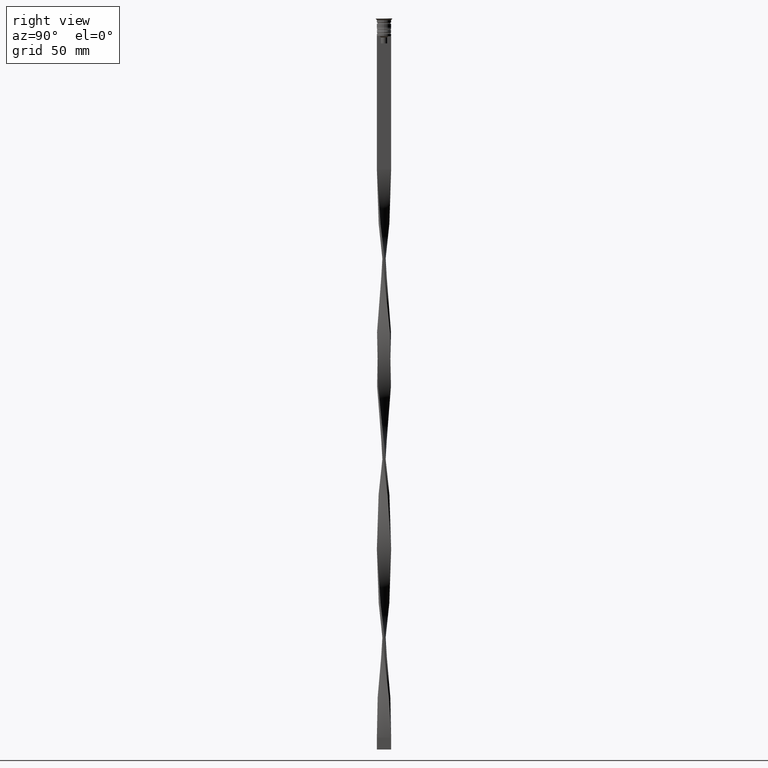
[diagram: clean part render]
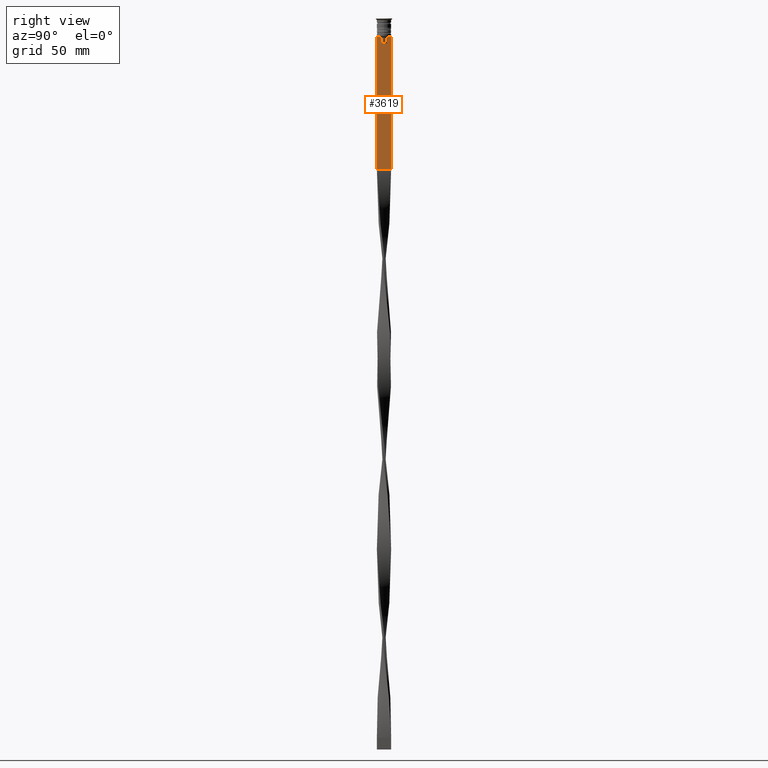
[diagram: same view with one face highlighted and labeled with its STEP entity id]
A machine part, right view. The second image highlights one B-rep face of the part: STEP entity #3619.
In plain terms, the highlighted planar face has unit normal (-1, 0, 0).
Its self-contained STEP definition (entity closure, byte-faithful):
#5 = LINE ( 'NONE', #1583, #2114 ) ;
#18 = CARTESIAN_POINT ( 'NONE',  ( 0.4999999999999998890, 1.307669683062199439, -10.49999999999999822 ) ) ;
#41 = CARTESIAN_POINT ( 'NONE',  ( 0.4999999999999998890, 2.856571371417139904, -7.500000000000000000 ) ) ;
#104 = EDGE_CURVE ( 'NONE', #790, #3881, #2633, .T. ) ;
#122 = ORIENTED_EDGE ( 'NONE', *, *, #961, .T. ) ;
#126 = CARTESIAN_POINT ( 'NONE',  ( 0.4999999999999998890, -3.000000000000000000, -7.500000000000000000 ) ) ;
#161 = B_SPLINE_CURVE_WITH_KNOTS ( 'NONE', 3,
 ( #621, #3310, #3886, #2428 ),
 .UNSPECIFIED., .F., .F.,
 ( 4, 4 ),
 ( 0.003278537493109848298, 0.004003794023484941178 ),
 .UNSPECIFIED. ) ;
#240 = CARTESIAN_POINT ( 'NONE',  ( 0.4999999999999998890, -3.000000000000000000, -7.500000000000000000 ) ) ;
#263 = ORIENTED_EDGE ( 'NONE', *, *, #353, .T. ) ;
#278 = EDGE_CURVE ( 'NONE', #952, #3087, #161, .T. ) ;
#353 = EDGE_CURVE ( 'NONE', #693, #3818, #438, .T. ) ;
#360 = CARTESIAN_POINT ( 'NONE',  ( 0.4999999999999998890, -1.307669683062199439, 0.000000000000000000 ) ) ;
#381 = CARTESIAN_POINT ( 'NONE',  ( 0.4999999999999998890, -3.000000000000000000, -7.500000000000000000 ) ) ;
#424 = CARTESIAN_POINT ( 'NONE',  ( 0.4999999999999998890, -3.000000000000000000, -7.500000000000000000 ) ) ;
#438 = B_SPLINE_CURVE_WITH_KNOTS ( 'NONE', 3,
 ( #3293, #1517, #2715, #1198 ),
 .UNSPECIFIED., .F., .F.,
 ( 4, 4 ),
 ( 0.007225659348748082224, 0.007950554640278054835 ),
 .UNSPECIFIED. ) ;
#460 = FACE_OUTER_BOUND ( 'NONE', #1597, .T. ) ;
#507 = DIRECTION ( 'NONE',  ( 0.000000000000000000, -1.000000000000000000, 0.000000000000000000 ) ) ;
#607 = VECTOR ( 'NONE', #3556, 1000.000000000000000 ) ;
#621 = CARTESIAN_POINT ( 'NONE',  ( 0.4999999999999998890, 1.833030277982335754, -7.500000000000000000 ) ) ;
#625 = EDGE_CURVE ( 'NONE', #3881, #1620, #5, .T. ) ;
#633 = DIRECTION ( 'NONE',  ( 0.000000000000000000, 1.000000000000000000, 0.000000000000000000 ) ) ;
#656 = VECTOR ( 'NONE', #2336, 1000.000000000000000 ) ;
#693 = VERTEX_POINT ( 'NONE', #3378 ) ;
#696 = DIRECTION ( 'NONE',  ( -0.000000000000000000, -0.000000000000000000, 1.000000000000000000 ) ) ;
#728 = DIRECTION ( 'NONE',  ( 0.000000000000000000, -1.000000000000000000, 0.000000000000000000 ) ) ;
#790 = VERTEX_POINT ( 'NONE', #1405 ) ;
#792 = EDGE_CURVE ( 'NONE', #3818, #1162, #2915, .T. ) ;
#809 = CARTESIAN_POINT ( 'NONE',  ( 0.4999999999999998890, 1.307669683062199439, 0.000000000000000000 ) ) ;
#821 = DIRECTION ( 'NONE',  ( 0.000000000000000000, 0.000000000000000000, 1.000000000000000000 ) ) ;
#858 = VECTOR ( 'NONE', #696, 1000.000000000000000 ) ;
#901 = ORIENTED_EDGE ( 'NONE', *, *, #792, .T. ) ;
#952 = VERTEX_POINT ( 'NONE', #3892 ) ;
#961 = EDGE_CURVE ( 'NONE', #3377, #2803, #3872, .T. ) ;
#1007 = CARTESIAN_POINT ( 'NONE',  ( 0.4999999999999998890, 3.000000000000000000, -1.417237469701779329 ) ) ;
#1051 = AXIS2_PLACEMENT_3D ( 'NONE', #2894, #2597, #821 ) ;
#1162 = VERTEX_POINT ( 'NONE', #1580 ) ;
#1198 = CARTESIAN_POINT ( 'NONE',  ( 0.4999999999999998890, -1.833030277982335754, -7.500000000000000000 ) ) ;
#1246 = VECTOR ( 'NONE', #3390, 1000.000000000000000 ) ;
#1280 = LINE ( 'NONE', #381, #1246 ) ;
#1287 = LINE ( 'NONE', #1007, #1365 ) ;
#1365 = VECTOR ( 'NONE', #2161, 1000.000000000000000 ) ;
#1405 = CARTESIAN_POINT ( 'NONE',  ( 0.4999999999999998890, -3.000000000000000000, -7.500000000000000000 ) ) ;
#1461 = DIRECTION ( 'NONE',  ( 0.000000000000000000, -1.000000000000000000, 0.000000000000000000 ) ) ;
#1482 = CARTESIAN_POINT ( 'NONE',  ( 0.4999999999999998890, -1.833030277982335754, -7.500000000000000000 ) ) ;
#1517 = CARTESIAN_POINT ( 'NONE',  ( 0.4999999999999998890, -1.484307477388859153, -7.835011508197190722 ) ) ;
#1571 = EDGE_CURVE ( 'NONE', #1966, #952, #2238, .T. ) ;
#1580 = CARTESIAN_POINT ( 'NONE',  ( 0.4999999999999998890, -2.856571371417139904, -7.500000000000000000 ) ) ;
#1583 = CARTESIAN_POINT ( 'NONE',  ( 0.4999999999999998890, -3.000000000000000000, -63.50000000000000000 ) ) ;
#1597 = EDGE_LOOP ( 'NONE', ( #1703, #2177, #1643, #122, #2555, #263, #901, #2505, #3675, #3495, #2922, #2607 ) ) ;
#1620 = VERTEX_POINT ( 'NONE', #3182 ) ;
#1643 = ORIENTED_EDGE ( 'NONE', *, *, #3198, .T. ) ;
#1703 = ORIENTED_EDGE ( 'NONE', *, *, #1571, .T. ) ;
#1961 = EDGE_CURVE ( 'NONE', #2399, #1966, #2973, .T. ) ;
#1966 = VERTEX_POINT ( 'NONE', #41 ) ;
#2114 = VECTOR ( 'NONE', #633, 1000.000000000000000 ) ;
#2161 = DIRECTION ( 'NONE',  ( 0.000000000000000000, 0.000000000000000000, -1.000000000000000000 ) ) ;
#2177 = ORIENTED_EDGE ( 'NONE', *, *, #278, .T. ) ;
#2237 = CARTESIAN_POINT ( 'NONE',  ( 0.4999999999999998890, 1.307669683062199439, -8.000000000000000000 ) ) ;
#2238 = LINE ( 'NONE', #126, #3142 ) ;
#2333 = PLANE ( 'NONE',  #1051 ) ;
#2336 = DIRECTION ( 'NONE',  ( 0.000000000000000000, -1.000000000000000000, 0.000000000000000000 ) ) ;
#2399 = VERTEX_POINT ( 'NONE', #2865 ) ;
#2428 = CARTESIAN_POINT ( 'NONE',  ( 0.4999999999999998890, 1.307669683062199439, -8.000000000000000000 ) ) ;
#2505 = ORIENTED_EDGE ( 'NONE', *, *, #3910, .T. ) ;
#2538 = EDGE_CURVE ( 'NONE', #2803, #693, #3759, .T. ) ;
#2555 = ORIENTED_EDGE ( 'NONE', *, *, #2538, .T. ) ;
#2597 = DIRECTION ( 'NONE',  ( -1.000000000000000000, 0.000000000000000000, 0.000000000000000000 ) ) ;
#2607 = ORIENTED_EDGE ( 'NONE', *, *, #1961, .T. ) ;
#2626 = VECTOR ( 'NONE', #3508, 1000.000000000000000 ) ;
#2633 = LINE ( 'NONE', #3213, #2626 ) ;
#2641 = CARTESIAN_POINT ( 'NONE',  ( 0.4999999999999998890, 1.399999999999997691, -10.49999999999999822 ) ) ;
#2715 = CARTESIAN_POINT ( 'NONE',  ( 0.4999999999999998890, -1.659011726860414093, -7.667884880598472286 ) ) ;
#2803 = VERTEX_POINT ( 'NONE', #2820 ) ;
#2820 = CARTESIAN_POINT ( 'NONE',  ( 0.4999999999999998890, -1.307669683062199439, -10.49999999999999822 ) ) ;
#2856 = EDGE_CURVE ( 'NONE', #2399, #1620, #1287, .T. ) ;
#2865 = CARTESIAN_POINT ( 'NONE',  ( 0.4999999999999998890, 3.000000000000000000, -7.500000000000000000 ) ) ;
#2894 = CARTESIAN_POINT ( 'NONE',  ( 0.4999999999999998890, -3.000000000000000000, -1.417237469701779329 ) ) ;
#2915 = LINE ( 'NONE', #424, #3710 ) ;
#2922 = ORIENTED_EDGE ( 'NONE', *, *, #2856, .F. ) ;
#2973 = LINE ( 'NONE', #240, #3905 ) ;
#3087 = VERTEX_POINT ( 'NONE', #2237 ) ;
#3142 = VECTOR ( 'NONE', #507, 1000.000000000000000 ) ;
#3182 = CARTESIAN_POINT ( 'NONE',  ( 0.4999999999999998890, 3.000000000000000000, -63.50000000000000000 ) ) ;
#3198 = EDGE_CURVE ( 'NONE', #3087, #3377, #3539, .T. ) ;
#3213 = CARTESIAN_POINT ( 'NONE',  ( 0.4999999999999998890, -3.000000000000000000, -1.417237469701779329 ) ) ;
#3293 = CARTESIAN_POINT ( 'NONE',  ( 0.4999999999999998890, -1.307669683062199439, -8.000000000000000000 ) ) ;
#3310 = CARTESIAN_POINT ( 'NONE',  ( 0.4999999999999998890, 1.659046061654642967, -7.667851756010362507 ) ) ;
#3312 = CARTESIAN_POINT ( 'NONE',  ( 0.4999999999999998890, -3.000000000000000000, -63.50000000000000000 ) ) ;
#3377 = VERTEX_POINT ( 'NONE', #18 ) ;
#3378 = CARTESIAN_POINT ( 'NONE',  ( 0.4999999999999998890, -1.307669683062199439, -8.000000000000000000 ) ) ;
#3390 = DIRECTION ( 'NONE',  ( 0.000000000000000000, -1.000000000000000000, 0.000000000000000000 ) ) ;
#3495 = ORIENTED_EDGE ( 'NONE', *, *, #625, .T. ) ;
#3508 = DIRECTION ( 'NONE',  ( 0.000000000000000000, 0.000000000000000000, -1.000000000000000000 ) ) ;
#3539 = LINE ( 'NONE', #809, #607 ) ;
#3556 = DIRECTION ( 'NONE',  ( 0.000000000000000000, 0.000000000000000000, -1.000000000000000000 ) ) ;
#3619 = ADVANCED_FACE ( 'NONE', ( #460 ), #2333, .F. ) ;
#3675 = ORIENTED_EDGE ( 'NONE', *, *, #104, .T. ) ;
#3710 = VECTOR ( 'NONE', #728, 1000.000000000000000 ) ;
#3759 = LINE ( 'NONE', #360, #858 ) ;
#3818 = VERTEX_POINT ( 'NONE', #1482 ) ;
#3872 = LINE ( 'NONE', #2641, #656 ) ;
#3881 = VERTEX_POINT ( 'NONE', #3312 ) ;
#3886 = CARTESIAN_POINT ( 'NONE',  ( 0.4999999999999998890, 1.484355510416485835, -7.834966642958598015 ) ) ;
#3892 = CARTESIAN_POINT ( 'NONE',  ( 0.4999999999999998890, 1.833030277982335754, -7.500000000000000000 ) ) ;
#3905 = VECTOR ( 'NONE', #1461, 1000.000000000000000 ) ;
#3910 = EDGE_CURVE ( 'NONE', #1162, #790, #1280, .T. ) ;